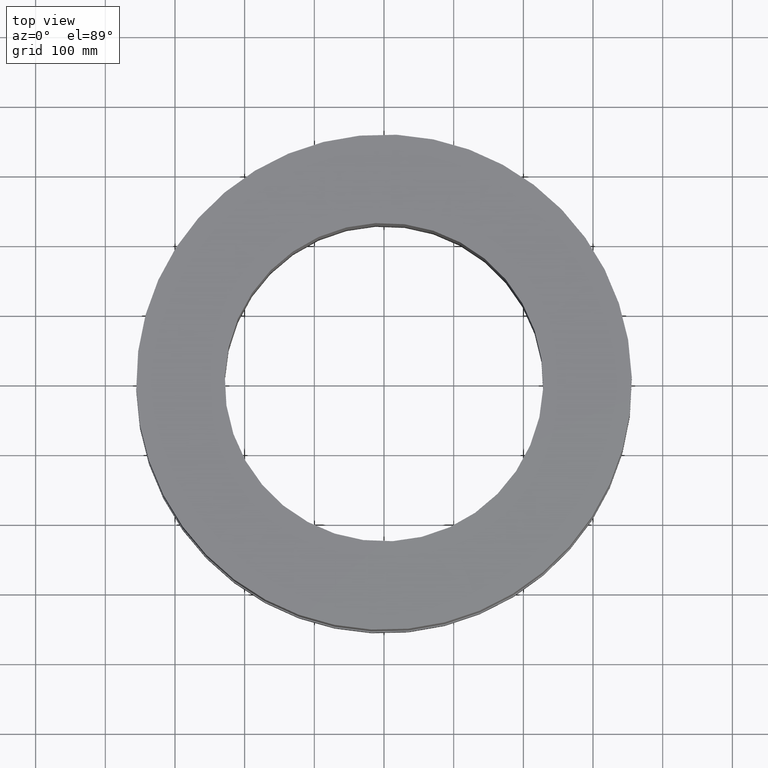
[diagram: clean part render]
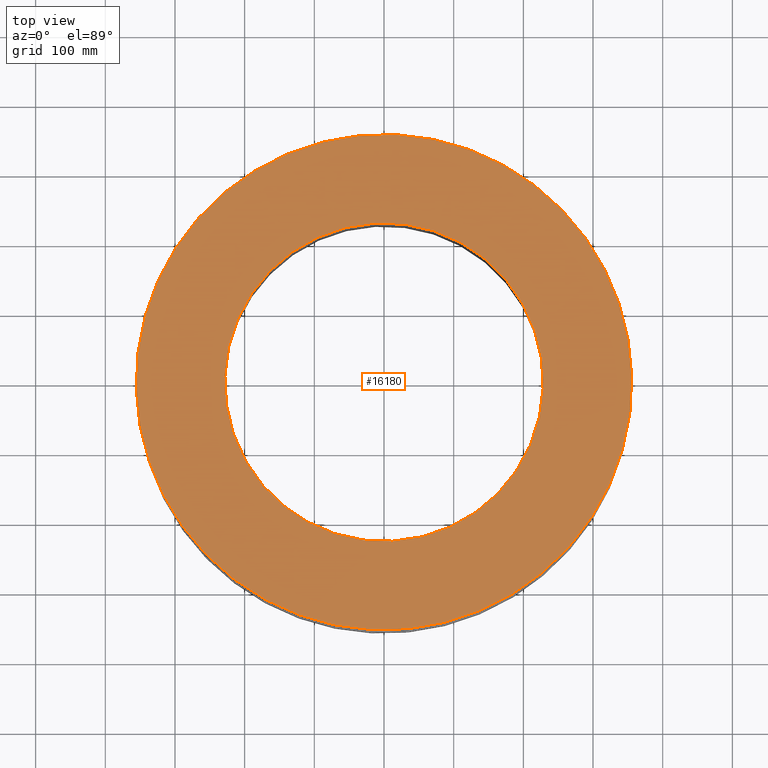
[diagram: same view with one face highlighted and labeled with its STEP entity id]
A machine part, top view. The second image highlights one B-rep face of the part: STEP entity #16180.
In plain terms, the highlighted planar face has unit normal (0, 0, -1).
Its self-contained STEP definition (entity closure, byte-faithful):
#5376=AXIS2_PLACEMENT_3D('Circle Axis2P3D',#5374,#5375,$) ;
#5395=AXIS2_PLACEMENT_3D('Circle Axis2P3D',#5393,#5394,$) ;
#16156=AXIS2_PLACEMENT_3D('Plane Axis2P3D',#16153,#16154,#16155) ;
#16164=AXIS2_PLACEMENT_3D('Circle Axis2P3D',#16162,#16163,$) ;
#16173=AXIS2_PLACEMENT_3D('Circle Axis2P3D',#16171,#16172,$) ;
#5371=CARTESIAN_POINT('Vertex',(6.71195754049,12.2861558665,11.9375)) ;
#5374=CARTESIAN_POINT('Axis2P3D Location',(0.,0.,11.9375)) ;
#5378=CARTESIAN_POINT('Vertex',(-6.71195754049,-12.2861558665,11.9375)) ;
#5393=CARTESIAN_POINT('Axis2P3D Location',(0.,0.,11.9375)) ;
#16153=CARTESIAN_POINT('Axis2P3D Location',(0.,14.0000000001,11.9375)) ;
#16162=CARTESIAN_POINT('Axis2P3D Location',(0.,0.,11.9375)) ;
#16166=CARTESIAN_POINT('Vertex',(-4.31482984746,-7.89824305704,11.9375)) ;
#16168=CARTESIAN_POINT('Vertex',(4.31482984746,7.89824305704,11.9375)) ;
#16171=CARTESIAN_POINT('Axis2P3D Location',(0.,0.,11.9375)) ;
#5375=DIRECTION('Axis2P3D Direction',(0.,0.,-0.0393700787402)) ;
#5394=DIRECTION('Axis2P3D Direction',(0.,0.,-0.0393700787402)) ;
#16154=DIRECTION('Axis2P3D Direction',(0.,0.,-0.0393700787402)) ;
#16155=DIRECTION('Axis2P3D XDirection',(0.0393700787402,0.,0.)) ;
#16163=DIRECTION('Axis2P3D Direction',(0.,0.,-0.0393700787402)) ;
#16172=DIRECTION('Axis2P3D Direction',(0.,0.,-0.0393700787402)) ;
#16159=ORIENTED_EDGE('',*,*,#5380,.F.) ;
#16160=ORIENTED_EDGE('',*,*,#5397,.F.) ;
#16177=ORIENTED_EDGE('',*,*,#16170,.T.) ;
#16178=ORIENTED_EDGE('',*,*,#16175,.T.) ;
#16179=FACE_BOUND('',#16176,.T.) ;
#16180=ADVANCED_FACE('PartBody',(#16161,#16179),#16157,.F.) ;
#5377=CIRCLE('generated circle',#5376,14.0000000001) ;
#5396=CIRCLE('generated circle',#5395,14.0000000001) ;
#16165=CIRCLE('generated circle',#16164,9.00000000004) ;
#16174=CIRCLE('generated circle',#16173,9.00000000004) ;
#5380=EDGE_CURVE('',#5372,#5379,#5377,.T.) ;
#5397=EDGE_CURVE('',#5379,#5372,#5396,.T.) ;
#16170=EDGE_CURVE('',#16167,#16169,#16165,.T.) ;
#16175=EDGE_CURVE('',#16169,#16167,#16174,.T.) ;
#16158=EDGE_LOOP('',(#16159,#16160)) ;
#16176=EDGE_LOOP('',(#16177,#16178)) ;
#16161=FACE_OUTER_BOUND('',#16158,.T.) ;
#16157=PLANE('',#16156) ;
#5372=VERTEX_POINT('',#5371) ;
#5379=VERTEX_POINT('',#5378) ;
#16167=VERTEX_POINT('',#16166) ;
#16169=VERTEX_POINT('',#16168) ;